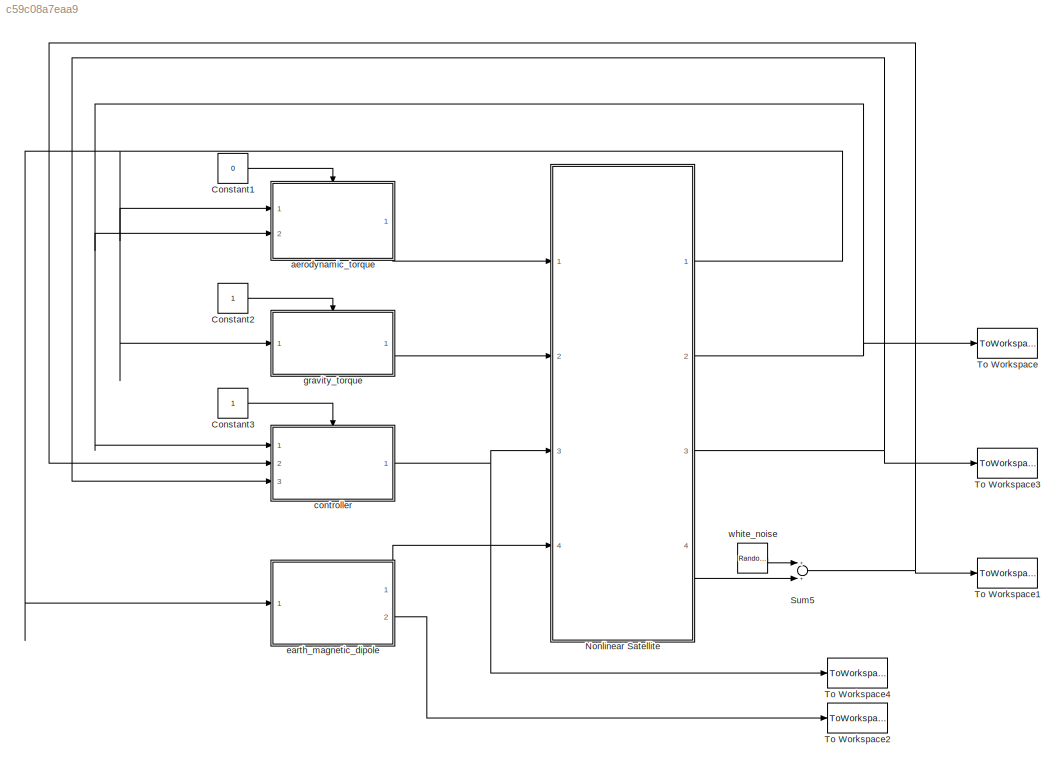
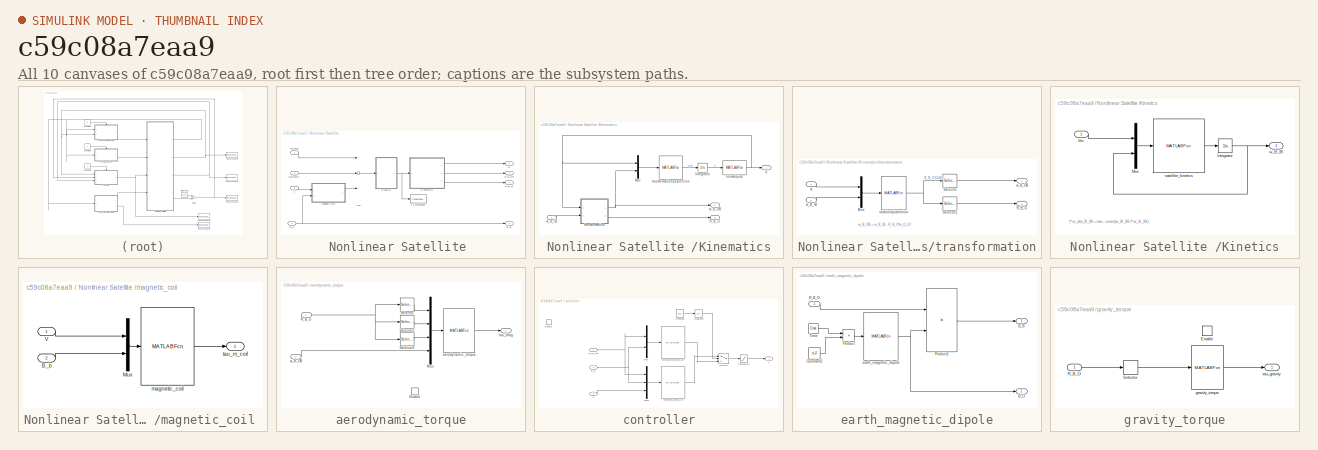
[diagram: thumbnail index - all 10 canvases of the model, root first then tree order]
MODEL slx_c59c08a7eaa9
KIND model
CONFIG AbsTol = auto
CONFIG EnableMultiTasking = on
CONFIG FixedStep = dt
CONFIG MaxStep = auto
CONFIG MinStep = auto
CONFIG RelTol = 1e-3
CONFIG SampleTimeConstraint = Unconstrained
CONFIG Solver = ode3
CONFIG SolverName = ode3
CONFIG StartTime = 0.0
CONFIG StopTime = 1000
BLOCK [Constant] Constant1
  Value = 0
BLOCK [Constant] Constant2
BLOCK [Constant] Constant3
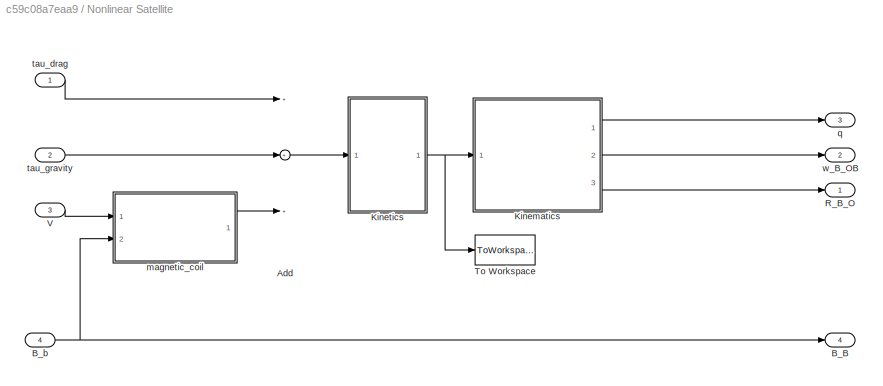
BLOCK [SubSystem] Nonlinear Satellite 
  Ports = [4, 4]
  RequestExecContextInheritance = off
  Variant = off
BLOCK [Sum] Nonlinear Satellite /Add
  InputSameDT = off
  Inputs = +++
  OutDataTypeStr = Inherit: Inherit via internal rule
  Ports = [3, 1]
  SaturateOnIntegerOverflow = off
BLOCK [Outport] Nonlinear Satellite /B_B
  IconDisplay = Port number
  Port = 4
BLOCK [Inport] Nonlinear Satellite /B_b
  IconDisplay = Port number
  Port = 4
BLOCK [SubSystem] Nonlinear Satellite /Kinematics
  Ports = [1, 3]
  RequestExecContextInheritance = off
  Variant = off
BLOCK [Integrator] Nonlinear Satellite /Kinematics/Integrator
  InitialCondition = q_0
  Ports = [1, 1]
BLOCK [Mux] Nonlinear Satellite /Kinematics/Mux
  DisplayOption = bar
  Inputs = 2
  Ports = [2, 1]
BLOCK [Outport] Nonlinear Satellite /Kinematics/R_B_O
  IconDisplay = Port number
  Port = 3
BLOCK [MATLABFcn] Nonlinear Satellite /Kinematics/normalquat
  MATLABFcn = normalquat
  Output1D = off
  OutputDimensions = [4,1]
  Ports = [1, 1]
BLOCK [Outport] Nonlinear Satellite /Kinematics/q
  IconDisplay = Port number
BLOCK [SubSystem] Nonlinear Satellite /Kinematics/transformation
  Ports = [2, 2]
  RequestExecContextInheritance = off
  Variant = off
BLOCK [Mux] Nonlinear Satellite /Kinematics/transformation/Mux
  DisplayOption = bar
  Inputs = 2
  Ports = [2, 1]
BLOCK [Outport] Nonlinear Satellite /Kinematics/transformation/R_B_O
  IconDisplay = Port number
  Port = 2
BLOCK [Selector] Nonlinear Satellite /Kinematics/transformation/Selector
  IndexOptions = Index vector (dialog),Index vector (dialog)
  Indices = [1:3],4
  InputPortWidth = 3
  NumberOfDimensions = 2
  OutputSizes = 1,1
  Ports = [1, 1]
BLOCK [Selector] Nonlinear Satellite /Kinematics/transformation/Selector1
  IndexOptions = Index vector (dialog),Index vector (dialog)
  Indices = [1:3],[1:3]
  InputPortWidth = 3
  NumberOfDimensions = 2
  OutputSizes = 1,1
  Ports = [1, 1]
BLOCK [Inport] Nonlinear Satellite /Kinematics/transformation/q
  IconDisplay = Port number
BLOCK [MATLABFcn] Nonlinear Satellite /Kinematics/transformation/rotationquaternion
  MATLABFcn = rotationquaternion
  Output1D = off
  OutputDimensions = [3,4]
  Ports = [1, 1]
BLOCK [Inport] Nonlinear Satellite /Kinematics/transformation/w_B_IB
  IconDisplay = Port number
  Port = 2
BLOCK [Outport] Nonlinear Satellite /Kinematics/transformation/w_B_OB
  IconDisplay = Port number
BLOCK [MATLABFcn] Nonlinear Satellite /Kinematics/transformationquaternion
  MATLABFcn = transformationquaternion
  Output1D = off
  OutputDimensions = [4,1]
  Ports = [1, 1]
BLOCK [Inport] Nonlinear Satellite /Kinematics/w_B_IB
  IconDisplay = Port number
BLOCK [Outport] Nonlinear Satellite /Kinematics/w_B_OB
  IconDisplay = Port number
  Port = 2
BLOCK [SubSystem] Nonlinear Satellite /Kinetics
  Ports = [1, 1]
  RequestExecContextInheritance = off
  Variant = off
BLOCK [Integrator] Nonlinear Satellite /Kinetics/Integrator
  InitialCondition = w_B_IB_0
  Ports = [1, 1]
BLOCK [Mux] Nonlinear Satellite /Kinetics/Mux
  DisplayOption = bar
  Inputs = [3 3]
  Ports = [2, 1]
BLOCK [MATLABFcn] Nonlinear Satellite /Kinetics/satellite_kinetics
  MATLABFcn = satellite_kinetics
  Output1D = off
  OutputDimensions = [3,1]
  Ports = [1, 1]
BLOCK [Inport] Nonlinear Satellite /Kinetics/tau
  IconDisplay = Port number
BLOCK [Outport] Nonlinear Satellite /Kinetics/w_B_IB
  IconDisplay = Port number
BLOCK [Outport] Nonlinear Satellite /R_B_O
  IconDisplay = Port number
BLOCK [ToWorkspace] Nonlinear Satellite /To Workspace
  MaxDataPoints = inf
  Ports = [1]
  SampleTime = -1
  VariableName = w_B_IB
BLOCK [Inport] Nonlinear Satellite /V
  IconDisplay = Port number
  Port = 3
BLOCK [SubSystem] Nonlinear Satellite /magnetic_coil 
  Ports = [2, 1]
  RequestExecContextInheritance = off
  Variant = off
BLOCK [Inport] Nonlinear Satellite /magnetic_coil /B_b
  IconDisplay = Port number
  Port = 2
BLOCK [Mux] Nonlinear Satellite /magnetic_coil /Mux
  DisplayOption = bar
  Inputs = 2
  Ports = [2, 1]
BLOCK [Inport] Nonlinear Satellite /magnetic_coil /V
  IconDisplay = Port number
BLOCK [MATLABFcn] Nonlinear Satellite /magnetic_coil /magnetic_coil
  MATLABFcn = magnetic_coil
  Output1D = off
  OutputDimensions = [3,1]
  Ports = [1, 1]
BLOCK [Outport] Nonlinear Satellite /magnetic_coil /tau_m_coil
  IconDisplay = Port number
BLOCK [Outport] Nonlinear Satellite /q
  IconDisplay = Port number
  Port = 3
BLOCK [Inport] Nonlinear Satellite /tau_drag
  IconDisplay = Port number
BLOCK [Inport] Nonlinear Satellite /tau_gravity
  IconDisplay = Port number
  Port = 2
BLOCK [Outport] Nonlinear Satellite /w_B_OB
  IconDisplay = Port number
  Port = 2
BLOCK [Sum] Sum5
  InputSameDT = off
  OutDataTypeStr = Inherit: Inherit via internal rule
  Ports = [2, 1]
BLOCK [ToWorkspace] To Workspace
  MaxDataPoints = inf
  Ports = [1]
  SampleTime = -1
  VariableName = w_B_OB
BLOCK [ToWorkspace] To Workspace1
  MaxDataPoints = inf
  Ports = [1]
  SampleTime = -1
  VariableName = B_B
BLOCK [ToWorkspace] To Workspace2
  MaxDataPoints = inf
  Ports = [1]
  SampleTime = -1
  VariableName = B_O
BLOCK [ToWorkspace] To Workspace3
  MaxDataPoints = inf
  Ports = [1]
  SampleTime = -1
  VariableName = q
BLOCK [ToWorkspace] To Workspace4
  MaxDataPoints = inf
  Ports = [1]
  SampleTime = -1
  VariableName = V_out
BLOCK [SubSystem] aerodynamic_torque
  Ports = [2, 1, 1]
  RequestExecContextInheritance = off
  Variant = off
BLOCK [EnablePort] aerodynamic_torque/Enable
  Ports = []
BLOCK [Mux] aerodynamic_torque/Mux
  DisplayOption = bar
  Ports = [4, 1]
BLOCK [Inport] aerodynamic_torque/R_B_O
  IconDisplay = Port number
BLOCK [Selector] aerodynamic_torque/Selector
  IndexOptions = Index vector (dialog),Index vector (dialog)
  Indices = [1:3],1
  InputPortWidth = 3
  NumberOfDimensions = 2
  OutputSizes = 1,1
  Ports = [1, 1]
BLOCK [Selector] aerodynamic_torque/Selector1
  IndexOptions = Index vector (dialog),Index vector (dialog)
  Indices = [1:3],2
  InputPortWidth = 3
  NumberOfDimensions = 2
  OutputSizes = 1,1
  Ports = [1, 1]
BLOCK [Selector] aerodynamic_torque/Selector2
  IndexOptions = Index vector (dialog),Index vector (dialog)
  Indices = [1:3],3
  InputPortWidth = 3
  NumberOfDimensions = 2
  OutputSizes = 1,1
  Ports = [1, 1]
BLOCK [MATLABFcn] aerodynamic_torque/aerodynamic_torque
  MATLABFcn = aerodynamic_torque
  Output1D = off
  OutputDimensions = [3,1]
  Ports = [1, 1]
BLOCK [Outport] aerodynamic_torque/tau_drag
  IconDisplay = Port number
BLOCK [Inport] aerodynamic_torque/w_B_OB
  IconDisplay = Port number
  Port = 2
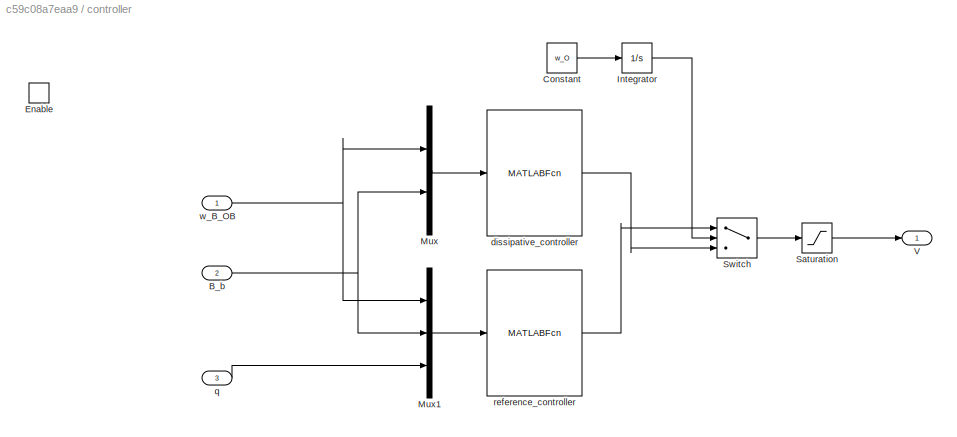
BLOCK [SubSystem] controller
  Ports = [3, 1, 1]
  RequestExecContextInheritance = off
  Variant = off
BLOCK [Inport] controller/B_b
  IconDisplay = Port number
  Port = 2
BLOCK [Constant] controller/Constant
  Value = w_O
BLOCK [EnablePort] controller/Enable
  Ports = []
BLOCK [Integrator] controller/Integrator
  Ports = [1, 1]
BLOCK [Mux] controller/Mux
  DisplayOption = bar
  Inputs = 2
  Ports = [2, 1]
BLOCK [Mux] controller/Mux1
  DisplayOption = bar
  Inputs = 3
  Ports = [3, 1]
BLOCK [Saturate] controller/Saturation
  InputPortMap = u0
  LowerLimit = -5
  Ports = [1, 1]
  UpperLimit = 5
BLOCK [Switch] controller/Switch
  Criteria = u2 > Threshold
  InputSameDT = off
  SaturateOnIntegerOverflow = off
  Threshold = 2*2*pi
BLOCK [Outport] controller/V
  IconDisplay = Port number
BLOCK [MATLABFcn] controller/dissipative_controller
  MATLABFcn = dissipative_controller
  Output1D = off
  OutputDimensions = [3,1]
  Ports = [1, 1]
BLOCK [Inport] controller/q
  IconDisplay = Port number
  Port = 3
BLOCK [MATLABFcn] controller/reference_controller
  MATLABFcn = reference_controller
  Output1D = off
  OutputDimensions = [3,1]
  Ports = [1, 1]
BLOCK [Inport] controller/w_B_OB
  IconDisplay = Port number
BLOCK [SubSystem] earth_magnetic_dipole
  Ports = [1, 2]
  RequestExecContextInheritance = off
  Variant = off
BLOCK [Outport] earth_magnetic_dipole/B_B
  IconDisplay = Port number
BLOCK [Outport] earth_magnetic_dipole/B_O
  IconDisplay = Port number
  Port = 2
BLOCK [Constant] earth_magnetic_dipole/Constant2
  Value = w_O
  VectorParams1D = off
BLOCK [Product] earth_magnetic_dipole/Product
  InputSameDT = off
  OutDataTypeStr = Inherit: Inherit via internal rule
  Ports = [2, 1]
  RndMeth = Floor
  SaturateOnIntegerOverflow = off
BLOCK [Product] earth_magnetic_dipole/Product1
  InputSameDT = off
  Multiplication = Matrix(*)
  OutDataTypeStr = Inherit: Inherit via internal rule
  Ports = [2, 1]
  RndMeth = Floor
  SaturateOnIntegerOverflow = off
BLOCK [Inport] earth_magnetic_dipole/R_B_O
  IconDisplay = Port number
BLOCK [Clock] earth_magnetic_dipole/Time
BLOCK [MATLABFcn] earth_magnetic_dipole/earth_magnetic_dipole
  MATLABFcn = earth_magnetic_dipole
  Output1D = off
  OutputDimensions = [3,1]
  Ports = [1, 1]
BLOCK [SubSystem] gravity_torque
  Ports = [1, 1, 1]
  RequestExecContextInheritance = off
  Variant = off
BLOCK [EnablePort] gravity_torque/Enable
  Ports = []
BLOCK [Inport] gravity_torque/R_B_O
  IconDisplay = Port number
BLOCK [Selector] gravity_torque/Selector
  IndexOptions = Index vector (dialog),Index vector (dialog)
  Indices = [1:3],[3]
  InputPortWidth = 3
  NumberOfDimensions = 2
  OutputSizes = 1,1
  Ports = [1, 1]
BLOCK [MATLABFcn] gravity_torque/gravity_torque
  MATLABFcn = gravity_torque
  Output1D = off
  OutputDimensions = [3,1]
  Ports = [1, 1]
BLOCK [Outport] gravity_torque/tau_gravity
  IconDisplay = Port number
BLOCK [RandomNumber] white_noise
  SampleTime = 0
  Variance = imu_sigma^2
ANNOTATION Nonlinear Satellite /Kinematics/transformation: w_B_OB = w_B_IB - R_B_O*w_O_IO
ANNOTATION Nonlinear Satellite /Kinetics: I*w_dot_B_IB = tau - cross(w_B_IB,I*w_B_IB)
LINE Constant1:1 -> aerodynamic_torque:enable
LINE Constant2:1 -> gravity_torque:enable
LINE Constant3:1 -> controller:enable
LINE Nonlinear Satellite /Add:1 -> Nonlinear Satellite /Kinetics:1
NET Nonlinear Satellite /B_b:1 -> Nonlinear Satellite /B_B:1, Nonlinear Satellite /magnetic_coil :2
LINE Nonlinear Satellite /Kinematics/Integrator:1 -> Nonlinear Satellite /Kinematics/normalquat:1
LINE Nonlinear Satellite /Kinematics/Mux:1 -> Nonlinear Satellite /Kinematics/transformationquaternion:1
NET Nonlinear Satellite /Kinematics/normalquat:1 -> Nonlinear Satellite /Kinematics/Mux:1, Nonlinear Satellite /Kinematics/q:1, Nonlinear Satellite /Kinematics/transformation:1
LINE Nonlinear Satellite /Kinematics/transformation/Mux:1 -> Nonlinear Satellite /Kinematics/transformation/rotationquaternion:1
LINE Nonlinear Satellite /Kinematics/transformation/Selector1:1 -> Nonlinear Satellite /Kinematics/transformation/R_B_O:1
LINE Nonlinear Satellite /Kinematics/transformation/Selector:1 -> Nonlinear Satellite /Kinematics/transformation/w_B_OB:1
LINE Nonlinear Satellite /Kinematics/transformation/q:1 -> Nonlinear Satellite /Kinematics/transformation/Mux:1
NET Nonlinear Satellite /Kinematics/transformation/rotationquaternion:1 -> Nonlinear Satellite /Kinematics/transformation/Selector1:1, Nonlinear Satellite /Kinematics/transformation/Selector:1
LINE Nonlinear Satellite /Kinematics/transformation/w_B_IB:1 -> Nonlinear Satellite /Kinematics/transformation/Mux:2
NET Nonlinear Satellite /Kinematics/transformation:1 -> Nonlinear Satellite /Kinematics/Mux:2, Nonlinear Satellite /Kinematics/w_B_OB:1
LINE Nonlinear Satellite /Kinematics/transformation:2 -> Nonlinear Satellite /Kinematics/R_B_O:1
LINE Nonlinear Satellite /Kinematics/transformationquaternion:1 -> Nonlinear Satellite /Kinematics/Integrator:1
LINE Nonlinear Satellite /Kinematics/w_B_IB:1 -> Nonlinear Satellite /Kinematics/transformation:2
LINE Nonlinear Satellite /Kinematics:1 -> Nonlinear Satellite /q:1
LINE Nonlinear Satellite /Kinematics:2 -> Nonlinear Satellite /w_B_OB:1
LINE Nonlinear Satellite /Kinematics:3 -> Nonlinear Satellite /R_B_O:1
NET Nonlinear Satellite /Kinetics/Integrator:1 -> Nonlinear Satellite /Kinetics/Mux:2, Nonlinear Satellite /Kinetics/w_B_IB:1
LINE Nonlinear Satellite /Kinetics/Mux:1 -> Nonlinear Satellite /Kinetics/satellite_kinetics:1
LINE Nonlinear Satellite /Kinetics/satellite_kinetics:1 -> Nonlinear Satellite /Kinetics/Integrator:1
LINE Nonlinear Satellite /Kinetics/tau:1 -> Nonlinear Satellite /Kinetics/Mux:1
NET Nonlinear Satellite /Kinetics:1 -> Nonlinear Satellite /Kinematics:1, Nonlinear Satellite /To Workspace:1
LINE Nonlinear Satellite /V:1 -> Nonlinear Satellite /magnetic_coil :1
LINE Nonlinear Satellite /magnetic_coil /B_b:1 -> Nonlinear Satellite /magnetic_coil /Mux:2
LINE Nonlinear Satellite /magnetic_coil /Mux:1 -> Nonlinear Satellite /magnetic_coil /magnetic_coil:1
LINE Nonlinear Satellite /magnetic_coil /V:1 -> Nonlinear Satellite /magnetic_coil /Mux:1
LINE Nonlinear Satellite /magnetic_coil /magnetic_coil:1 -> Nonlinear Satellite /magnetic_coil /tau_m_coil:1
LINE Nonlinear Satellite /magnetic_coil :1 -> Nonlinear Satellite /Add:3
LINE Nonlinear Satellite /tau_drag:1 -> Nonlinear Satellite /Add:1
LINE Nonlinear Satellite /tau_gravity:1 -> Nonlinear Satellite /Add:2
NET Nonlinear Satellite :1 -> aerodynamic_torque:1, earth_magnetic_dipole:1, gravity_torque:1
NET Nonlinear Satellite :2 -> To Workspace:1, aerodynamic_torque:2, controller:1
NET Nonlinear Satellite :3 -> To Workspace3:1, controller:3
LINE Nonlinear Satellite :4 -> Sum5:2
NET Sum5:1 -> To Workspace1:1, controller:2
LINE aerodynamic_torque/Mux:1 -> aerodynamic_torque/aerodynamic_torque:1
NET aerodynamic_torque/R_B_O:1 -> aerodynamic_torque/Selector1:1, aerodynamic_torque/Selector2:1, aerodynamic_torque/Selector:1
LINE aerodynamic_torque/Selector1:1 -> aerodynamic_torque/Mux:2
LINE aerodynamic_torque/Selector2:1 -> aerodynamic_torque/Mux:3
LINE aerodynamic_torque/Selector:1 -> aerodynamic_torque/Mux:1
LINE aerodynamic_torque/aerodynamic_torque:1 -> aerodynamic_torque/tau_drag:1
LINE aerodynamic_torque/w_B_OB:1 -> aerodynamic_torque/Mux:4
LINE aerodynamic_torque:1 -> Nonlinear Satellite :1
NET controller/B_b:1 -> controller/Mux1:2, controller/Mux:2
LINE controller/Constant:1 -> controller/Integrator:1
LINE controller/Integrator:1 -> controller/Switch:2
LINE controller/Mux1:1 -> controller/reference_controller:1
LINE controller/Mux:1 -> controller/dissipative_controller:1
LINE controller/Saturation:1 -> controller/V:1
LINE controller/Switch:1 -> controller/Saturation:1
LINE controller/dissipative_controller:1 -> controller/Switch:3
LINE controller/q:1 -> controller/Mux1:3
LINE controller/reference_controller:1 -> controller/Switch:1
NET controller/w_B_OB:1 -> controller/Mux1:1, controller/Mux:1
NET controller:1 -> Nonlinear Satellite :3, To Workspace4:1
LINE earth_magnetic_dipole/Constant2:1 -> earth_magnetic_dipole/Product:2
LINE earth_magnetic_dipole/Product1:1 -> earth_magnetic_dipole/B_B:1
LINE earth_magnetic_dipole/Product:1 -> earth_magnetic_dipole/earth_magnetic_dipole:1
LINE earth_magnetic_dipole/R_B_O:1 -> earth_magnetic_dipole/Product1:1
LINE earth_magnetic_dipole/Time:1 -> earth_magnetic_dipole/Product:1
NET earth_magnetic_dipole/earth_magnetic_dipole:1 -> earth_magnetic_dipole/B_O:1, earth_magnetic_dipole/Product1:2
LINE earth_magnetic_dipole:1 -> Nonlinear Satellite :4
LINE earth_magnetic_dipole:2 -> To Workspace2:1
LINE gravity_torque/R_B_O:1 -> gravity_torque/Selector:1
LINE gravity_torque/Selector:1 -> gravity_torque/gravity_torque:1
LINE gravity_torque/gravity_torque:1 -> gravity_torque/tau_gravity:1
LINE gravity_torque:1 -> Nonlinear Satellite :2
LINE white_noise:1 -> Sum5:1
note: NET lines group one-source signal fan-out (src -> all destinations, sorted); 1:1 wires keep LINE
